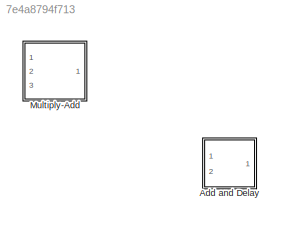
MODEL slx_7e4a8794f713
KIND library
CONFIG AbsTol = auto
CONFIG EnableMultiTasking = off
CONFIG FixedStep = auto
CONFIG MaxStep = auto
CONFIG MinStep = auto
CONFIG RelTol = 1e-3
CONFIG SampleTimeConstraint = Unconstrained
CONFIG Solver = VariableStepAuto
CONFIG SolverName = VariableStepAuto
CONFIG StartTime = 0.0
CONFIG StopTime = 10.0
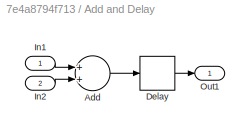
BLOCK [SubSystem] Add and Delay
  Ports = [2, 1]
  RequestExecContextInheritance = off
BLOCK [Sum] Add and Delay/Add
  InputSameDT = off
  OutDataTypeStr = Inherit: Inherit via back propagation
  Ports = [2, 1]
  SaturateOnIntegerOverflow = off
BLOCK [Delay] Add and Delay/Delay
  DelayLength = 1
  InitialCondition = 0
  InputPortMap = u0
  Ports = [1, 1]
BLOCK [Inport] Add and Delay/In1
  IconDisplay = Port number
BLOCK [Inport] Add and Delay/In2
  IconDisplay = Port number
  Port = 2
BLOCK [Outport] Add and Delay/Out1
  IconDisplay = Port number
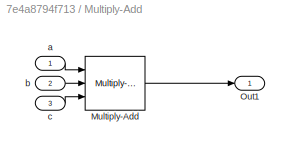
BLOCK [SubSystem] Multiply-Add
  Ports = [3, 1]
  RequestExecContextInheritance = off
BLOCK [Reference] Multiply-Add/Multiply-Add  REF=hdlsllib/HDL Operations/Multiply-Add
  Ports = [3, 1]
  SourceBlock = hdlsllib/HDL Operations/Multiply-Add
  SourceProductBaseCode = HD
  SourceProductName = HDL Coder
  SourceType = Multiply-Add
BLOCK [Outport] Multiply-Add/Out1
  IconDisplay = Port number
BLOCK [Inport] Multiply-Add/a
  IconDisplay = Port number
BLOCK [Inport] Multiply-Add/b
  IconDisplay = Port number
  Port = 2
BLOCK [Inport] Multiply-Add/c
  IconDisplay = Port number
  Port = 3
LINE Add and Delay/Add:1 -> Add and Delay/Delay:1
LINE Add and Delay/Delay:1 -> Add and Delay/Out1:1
LINE Add and Delay/In1:1 -> Add and Delay/Add:1
LINE Add and Delay/In2:1 -> Add and Delay/Add:2
LINE Multiply-Add/Multiply-Add:1 -> Multiply-Add/Out1:1
LINE Multiply-Add/a:1 -> Multiply-Add/Multiply-Add:1
LINE Multiply-Add/b:1 -> Multiply-Add/Multiply-Add:2
LINE Multiply-Add/c:1 -> Multiply-Add/Multiply-Add:3
